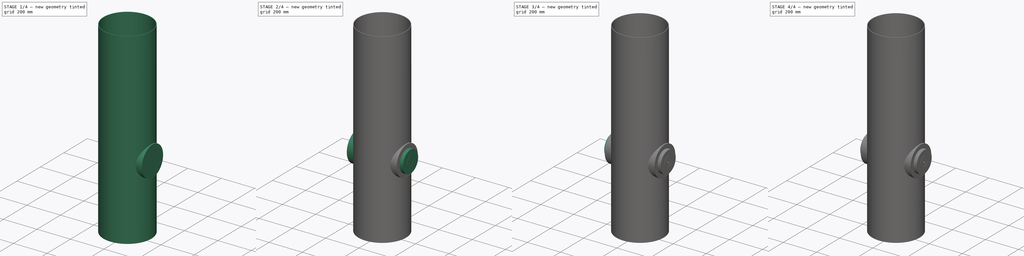
[diagram: build sequence overview — one tinted view per stage of 4, left to right]
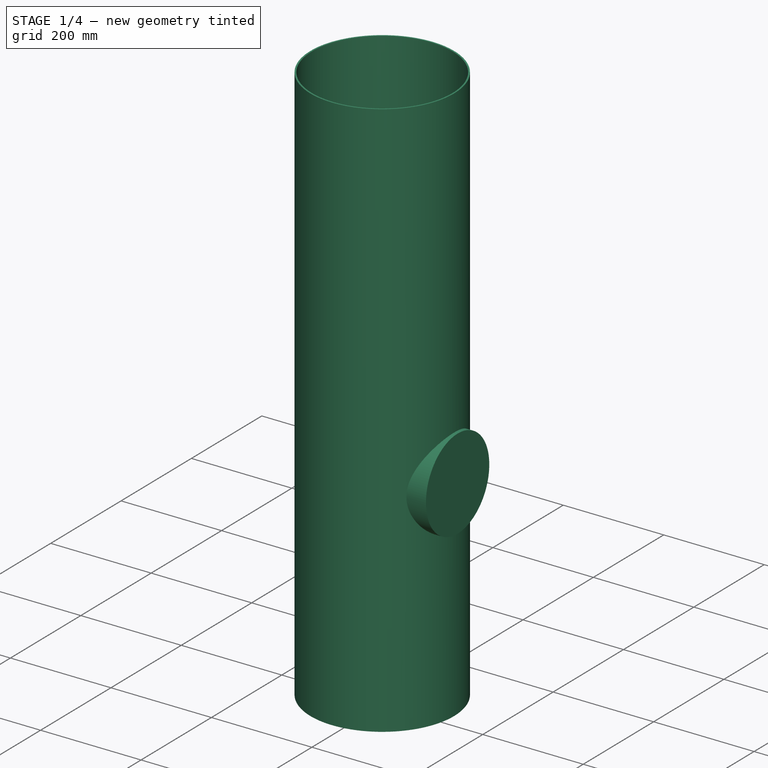
[diagram: stage 1 of 4 — iso view after this stage's code; geometry added in this stage tinted green]
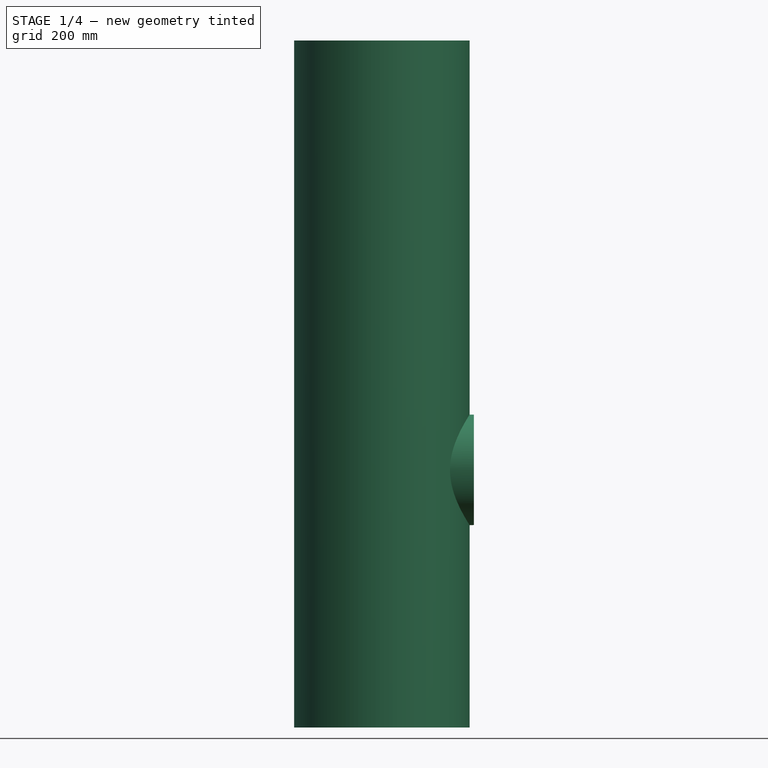
[diagram: stage 1 of 4 — front view after this stage's code; geometry added in this stage tinted green]
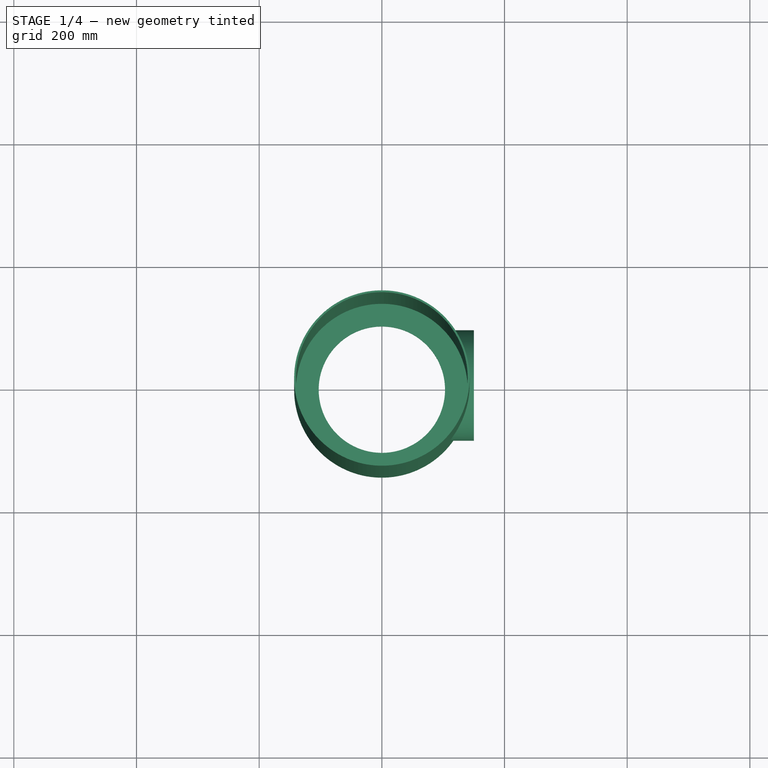
[diagram: stage 1 of 4 — top view after this stage's code; geometry added in this stage tinted green]
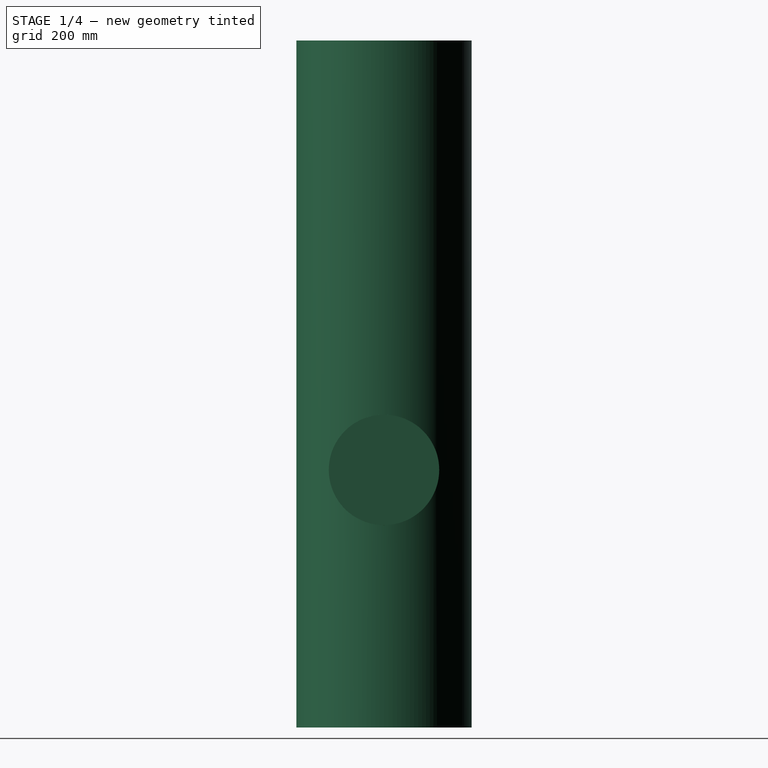
[diagram: stage 1 of 4 — right view after this stage's code; geometry added in this stage tinted green]
FCSTD DOCUMENT  (FreeCAD 0.19R21911 +2545 (Git))
Label: tubus
License: All rights reserved
LicenseURL: http://en.wikipedia.org/wiki/All_rights_reserved
objects: Sketcher::SketchObject×12, PartDesign::Pad×8, PartDesign::Pocket×4, PartDesign::Plane×3, PartDesign::Body×1
note: 52 computed .brp shape members not serialized (recipe doc carries the construction recipe); baked Part::Feature solids carry a one-line shape summary decoded from their .brp

FEATURE [Sketcher::SketchObject] Sketch
  MapMode = 5
  Support = -> [XY_Plane]
  sketch-geometry (2):
    g0: Circle CenterX=0 CenterY=0 CenterZ=0 NormalX=0 NormalY=0 NormalZ=1 AngleXU=0 Radius=140
    g1: Circle CenterX=0 CenterY=0 CenterZ=0 NormalX=0 NormalY=0 NormalZ=1 AngleXU=0 Radius=143
  constraints (4):
    c: Coincident(g0,g-1)
    c: Coincident(g1,g0)
    c: Radius(g1) = 143
    c: Radius(g0) = 140
FEATURE [PartDesign::Pad] Pad
  AllowMultiFace = false
  ClaimChildren = false
  Length = 1120
  Length2 = 100
  Profile = -> Sketch
  Suppress = false
  Type = 0
FEATURE [PartDesign::Plane] DatumPlane
  AttachmentOffset = pos=(0,0,-20) rot=(0,0,1;0rad)
  Length = 342
  MapMode = 5
  Placement = pos=(0,0,20) rot=(1,0,0;3.14159rad)
  ResizeMode = 0
  Support = -> [Pad]
  Width = 285.712
FEATURE [Sketcher::SketchObject] Sketch001
  ExternalGeometry = -> [Pad]
  MapMode = 5
  Placement = pos=(0,0,20) rot=(1,0,0;3.14159rad)
  Support = -> [DatumPlane]
  sketch-geometry (2):
    g0: Circle CenterX=0 CenterY=0 CenterZ=0 NormalX=0 NormalY=0 NormalZ=1 AngleXU=0 Radius=140
    g1: Circle CenterX=0 CenterY=0 CenterZ=0 NormalX=0 NormalY=0 NormalZ=1 AngleXU=0 Radius=103
  constraints (4):
    c: Coincident(g0,g-1)
    c: Coincident(g1,g0)
    c: Equal(g-3,g0)
    c: Radius(g1) = 103
FEATURE [PartDesign::Pad] Pad001
  AllowMultiFace = false
  BaseFeature = -> Pad
  ClaimChildren = false
  Length = 10
  Length2 = 100
  Profile = -> Sketch001
  Reversed = true
  Suppress = false
  Type = 0
FEATURE [PartDesign::Plane] DatumPlane001
  AttachmentOffset = pos=(0,0,150) rot=(0,0,1;0rad)
  Length = 285.712
  MapMode = 5
  Placement = pos=(150,-1.69365e-11,1.69365e-11) rot=(0.57735,0.57735,0.57735;2.0944rad)
  ResizeMode = 0
  Support = -> [YZ_Plane]
  Width = 1120
FEATURE [Sketcher::SketchObject] Sketch002
  MapMode = 5
  Placement = pos=(150,-1.69365e-11,1.69365e-11) rot=(0.57735,0.57735,0.57735;2.0944rad)
  Support = -> [DatumPlane001]
  sketch-geometry (1):
    g0: Circle CenterX=0 CenterY=420 CenterZ=0 NormalX=0 NormalY=0 NormalZ=1 AngleXU=0 Radius=90
  constraints (3):
    c: PointOnObject(g0,g-2)
    c: DistanceY(g0) = 420
    c: Radius(g0) = 90
FEATURE [PartDesign::Pad] Pad002
  AllowMultiFace = false
  BaseFeature = -> Pad001
  ClaimChildren = false
  Length = 23
  Length2 = 100
  Profile = -> Sketch002
  Suppress = false
  Type = 3
  UpToFace = -> Pad001 [Face1]
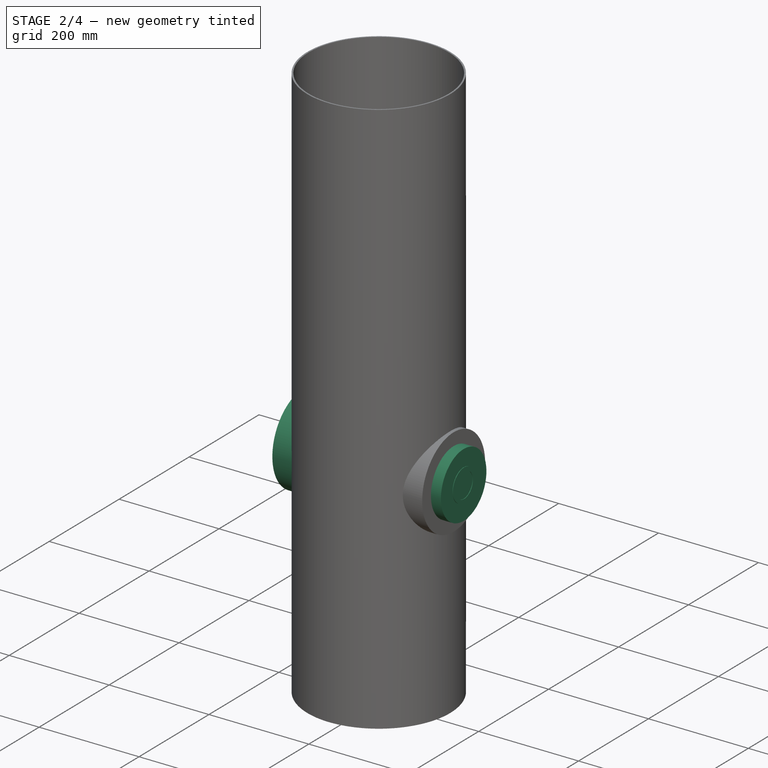
[diagram: stage 2 of 4 — iso view after this stage's code; geometry added in this stage tinted green]
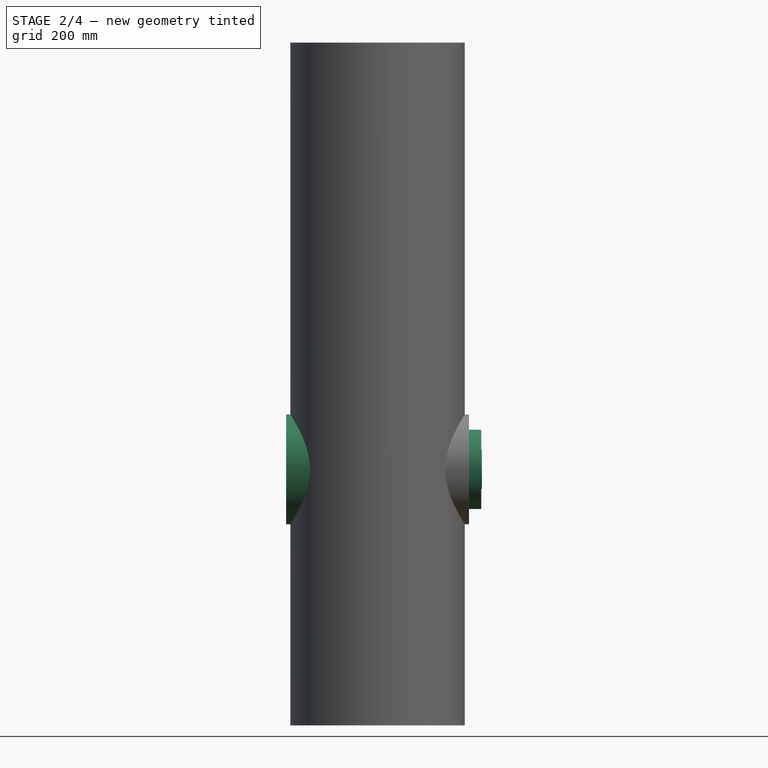
[diagram: stage 2 of 4 — front view after this stage's code; geometry added in this stage tinted green]
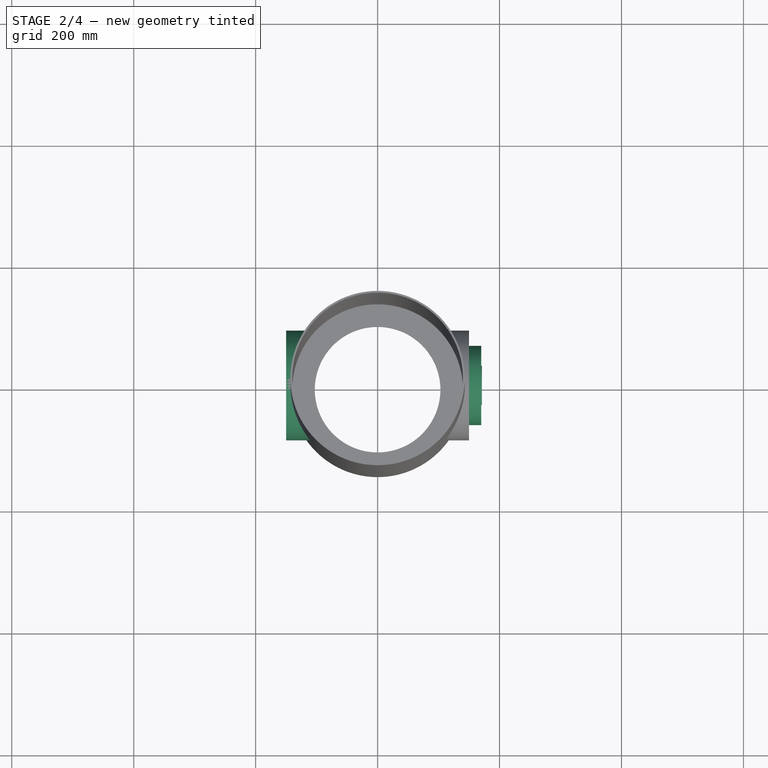
[diagram: stage 2 of 4 — top view after this stage's code; geometry added in this stage tinted green]
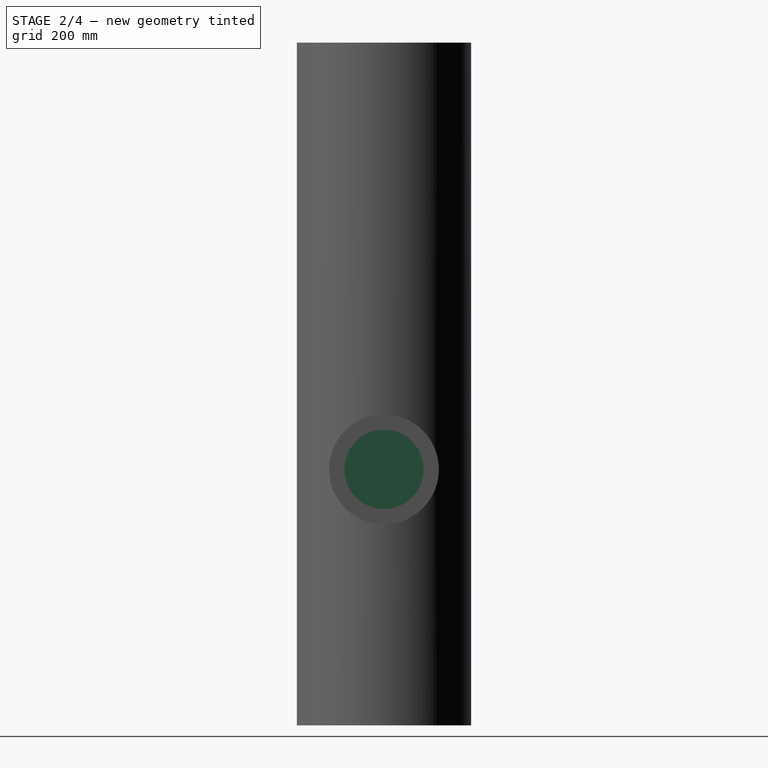
[diagram: stage 2 of 4 — right view after this stage's code; geometry added in this stage tinted green]
FEATURE [Sketcher::SketchObject] Sketch003
  ExternalGeometry = -> [Pad002]
  MapMode = 5
  Placement = pos=(150,-1.68795e-11,1.6929e-11) rot=(0.57735,0.57735,0.57735;2.0944rad)
  Support = -> [Pad002]
  sketch-geometry (1):
    g0: Circle CenterX=0 CenterY=420 CenterZ=0 NormalX=0 NormalY=0 NormalZ=1 AngleXU=0 Radius=65
  constraints (2):
    c: Coincident(g0,g-3)
    c: Radius(g0) = 65
FEATURE [PartDesign::Pad] Pad003
  AllowMultiFace = false
  BaseFeature = -> Pad002
  ClaimChildren = false
  Length = 20
  Length2 = 100
  Profile = -> Sketch003
  Suppress = false
  Type = 0
FEATURE [Sketcher::SketchObject] Sketch004
  ExternalGeometry = -> [Pad003]
  MapMode = 5
  Placement = pos=(170,-1.91284e-11,1.91403e-11) rot=(0.57735,0.57735,0.57735;2.0944rad)
  Support = -> [Pad003]
  sketch-geometry (2):
    g0: Circle CenterX=0 CenterY=420 CenterZ=0 NormalX=0 NormalY=0 NormalZ=1 AngleXU=0 Radius=32
    g1: Circle CenterX=0 CenterY=420 CenterZ=0 NormalX=0 NormalY=0 NormalZ=1 AngleXU=0 Radius=25
  constraints (4):
    c: Coincident(g0,g-3)
    c: Radius(g0) = 32
    c: Coincident(g1,g0)
    c: Radius(g1) = 25
FEATURE [PartDesign::Pad] Pad004
  AllowMultiFace = false
  BaseFeature = -> Pad003
  ClaimChildren = false
  Length = 1
  Length2 = 100
  Profile = -> Sketch004
  Suppress = false
  Type = 0
FEATURE [PartDesign::Plane] DatumPlane002
  AttachmentOffset = pos=(0,0,-150) rot=(0,0,1;0rad)
  Length = 285.712
  MapMode = 5
  Placement = pos=(-150,1.69365e-11,-1.69365e-11) rot=(0.57735,0.57735,0.57735;2.0944rad)
  ResizeMode = 0
  Support = -> [YZ_Plane]
  Width = 1120
FEATURE [Sketcher::SketchObject] Sketch005
  ExternalGeometry = -> [Pad004]
  MapMode = 5
  Placement = pos=(-150,1.69365e-11,-1.69365e-11) rot=(0.57735,0.57735,0.57735;2.0944rad)
  Support = -> [DatumPlane002]
  sketch-geometry (1):
    g0: Circle CenterX=0 CenterY=420 CenterZ=0 NormalX=0 NormalY=0 NormalZ=1 AngleXU=0 Radius=90
  constraints (2):
    c: Coincident(g0,g-3)
    c: Equal(g0,g-3)
FEATURE [PartDesign::Pad] Pad005
  AllowMultiFace = false
  BaseFeature = -> Pad004
  ClaimChildren = false
  Length = 10
  Length2 = 100
  Profile = -> Sketch005
  Suppress = false
  Type = 3
  UpToFace = -> Pad004 [Face1]
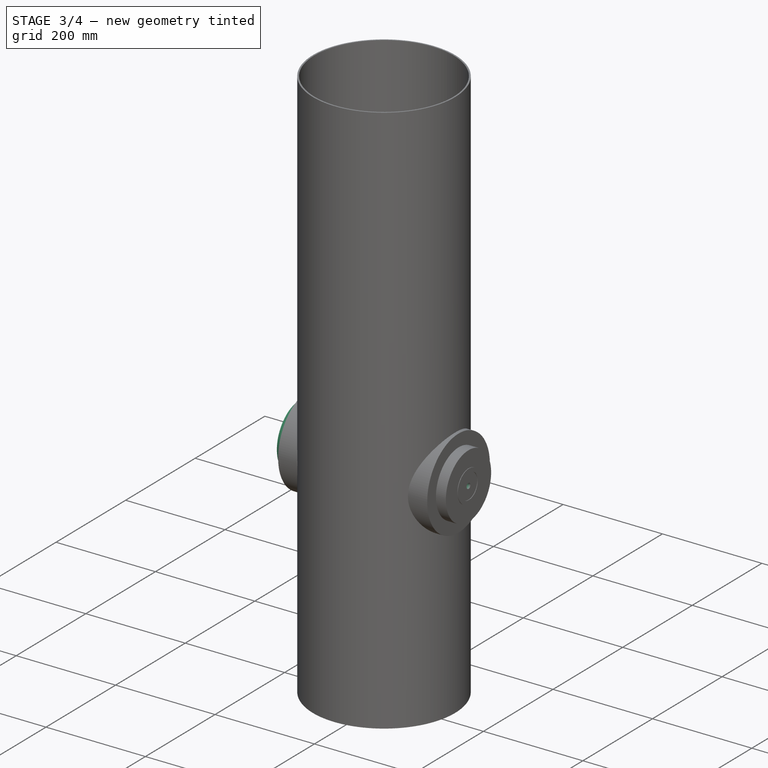
[diagram: stage 3 of 4 — iso view after this stage's code; geometry added in this stage tinted green]
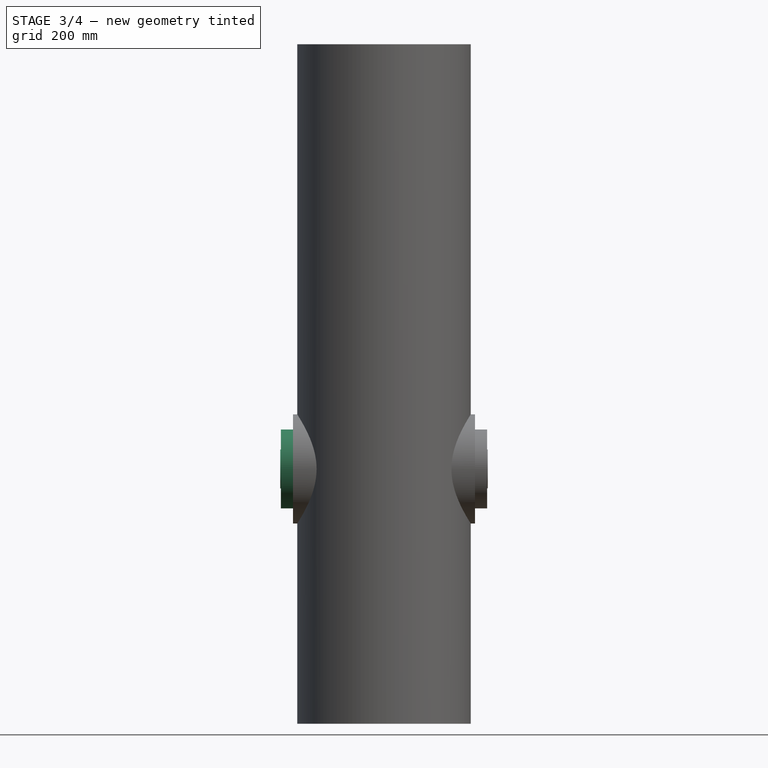
[diagram: stage 3 of 4 — front view after this stage's code; geometry added in this stage tinted green]
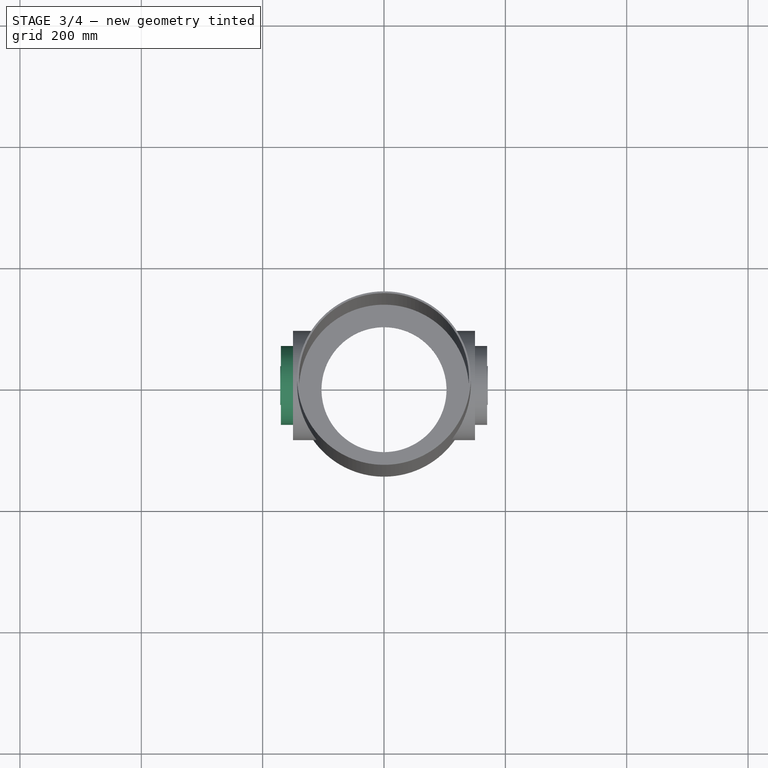
[diagram: stage 3 of 4 — top view after this stage's code; geometry added in this stage tinted green]
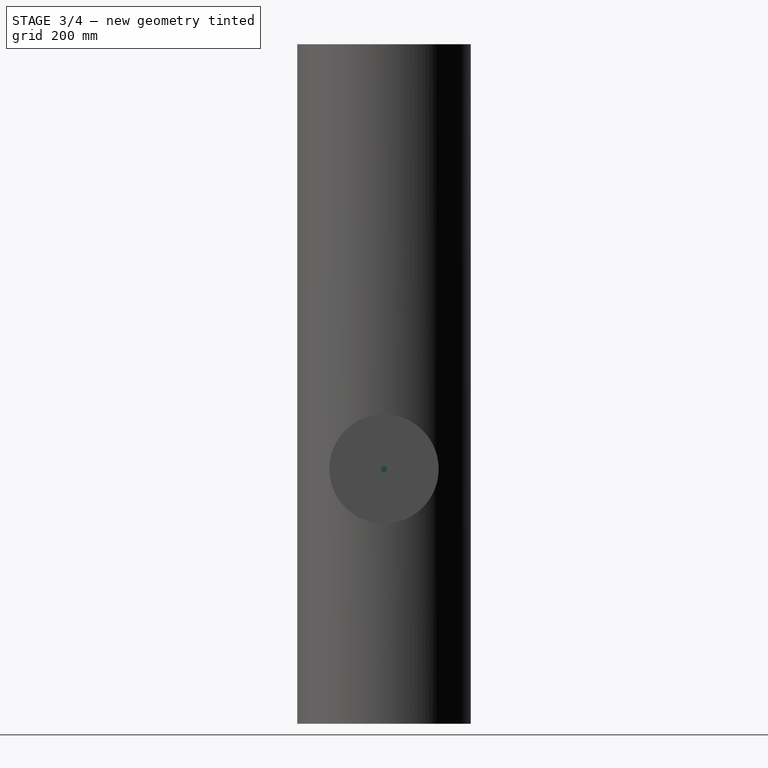
[diagram: stage 3 of 4 — right view after this stage's code; geometry added in this stage tinted green]
FEATURE [Sketcher::SketchObject] Sketch006
  ExternalGeometry = -> [Pad005]
  MapMode = 5
  Placement = pos=(-150,1.68795e-11,-1.6929e-11) rot=(-0.57735,0.57735,0.57735;4.18879rad)
  Support = -> [Pad005]
  sketch-geometry (1):
    g0: Circle CenterX=0 CenterY=420 CenterZ=0 NormalX=0 NormalY=0 NormalZ=1 AngleXU=0 Radius=65
  constraints (2):
    c: Coincident(g0,g-3)
    c: Equal(g-4,g0)
FEATURE [PartDesign::Pad] Pad006
  AllowMultiFace = false
  BaseFeature = -> Pad005
  ClaimChildren = false
  Length = 20
  Length2 = 100
  Profile = -> Sketch006
  Suppress = false
  Type = 0
FEATURE [Sketcher::SketchObject] Sketch007
  ExternalGeometry = -> [Pad006]
  MapMode = 5
  Placement = pos=(-170,1.91539e-11,-1.91845e-11) rot=(-0.57735,0.57735,0.57735;4.18879rad)
  Support = -> [Pad006]
  sketch-geometry (2):
    g0: Circle CenterX=0 CenterY=420 CenterZ=0 NormalX=0 NormalY=0 NormalZ=1 AngleXU=0 Radius=25
    g1: Circle CenterX=0 CenterY=420 CenterZ=0 NormalX=0 NormalY=0 NormalZ=1 AngleXU=0 Radius=32
  constraints (4):
    c: Coincident(g0,g-4)
    c: Coincident(g1,g0)
    c: Equal(g1,g-3)
    c: Equal(g0,g-4)
FEATURE [PartDesign::Pad] Pad007
  AllowMultiFace = false
  BaseFeature = -> Pad006
  ClaimChildren = false
  Length = 1
  Length2 = 100
  Profile = -> Sketch007
  Suppress = false
  Type = 0
FEATURE [Sketcher::SketchObject] Sketch008
  ExternalGeometry = -> [Pad007]
  MapMode = 5
  Placement = pos=(170,-1.91284e-11,1.91403e-11) rot=(0.57735,0.57735,0.57735;2.0944rad)
  Support = -> [Pad007]
  sketch-geometry (1):
    g0: Circle CenterX=0 CenterY=420 CenterZ=0 NormalX=0 NormalY=0 NormalZ=1 AngleXU=0 Radius=5.25
  constraints (2):
    c: Coincident(g0,g-3)
    c: Radius(g0) = 5.25
FEATURE [PartDesign::Pocket] Pocket
  AllowMultiFace = false
  BaseFeature = -> Pad007
  ClaimChildren = false
  Length = 7
  Length2 = 100
  Profile = -> Sketch008
  Suppress = false
  Type = 0
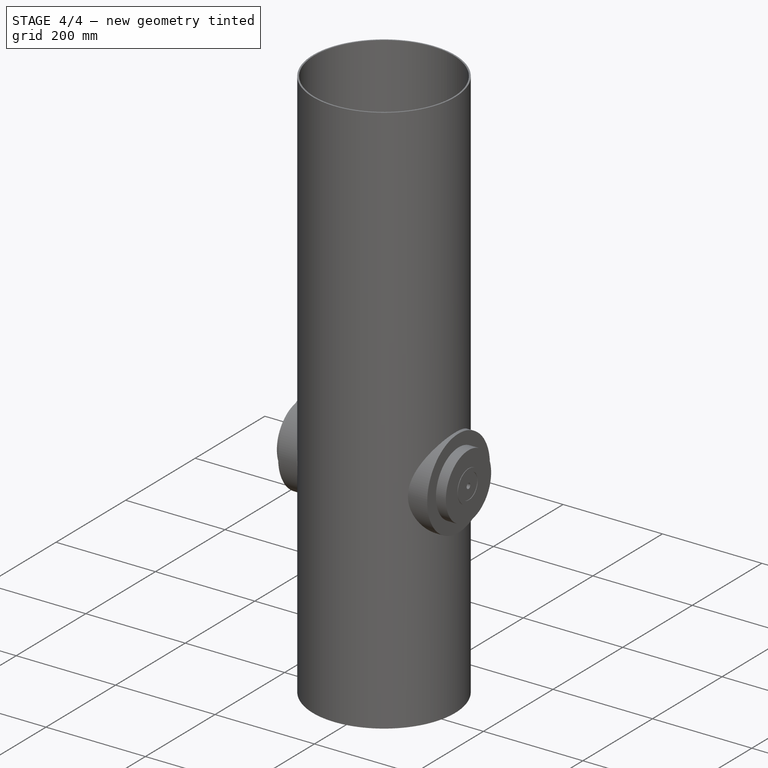
[diagram: stage 4 of 4 — iso view after this stage's code; geometry added in this stage tinted green]
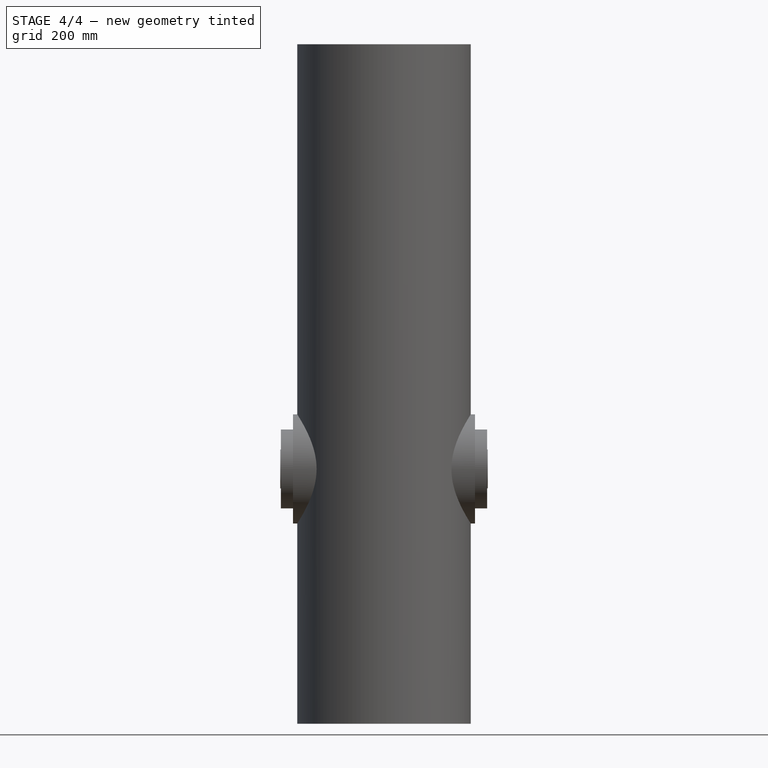
[diagram: stage 4 of 4 — front view after this stage's code; geometry added in this stage tinted green]
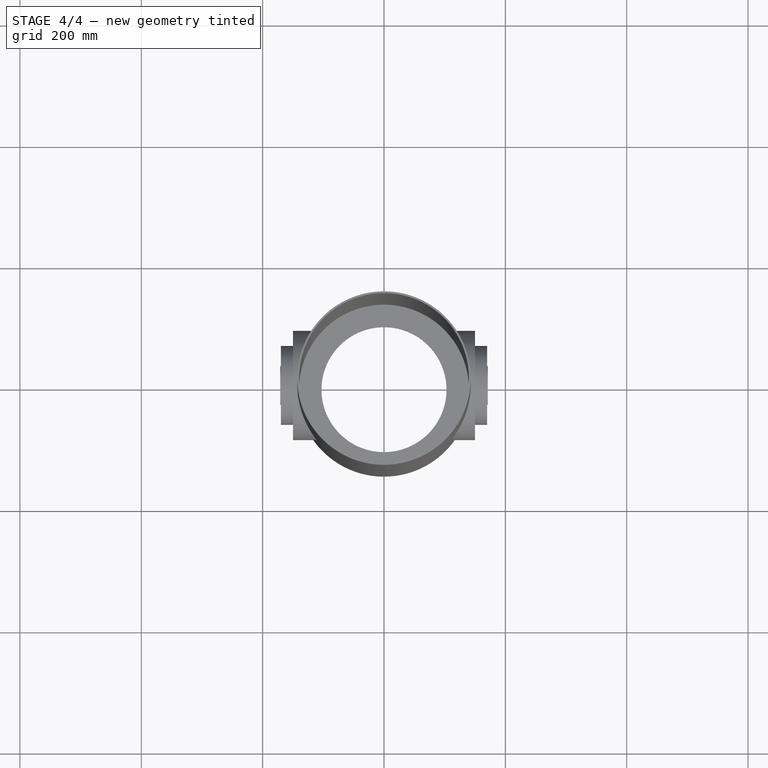
[diagram: stage 4 of 4 — top view after this stage's code; geometry added in this stage tinted green]
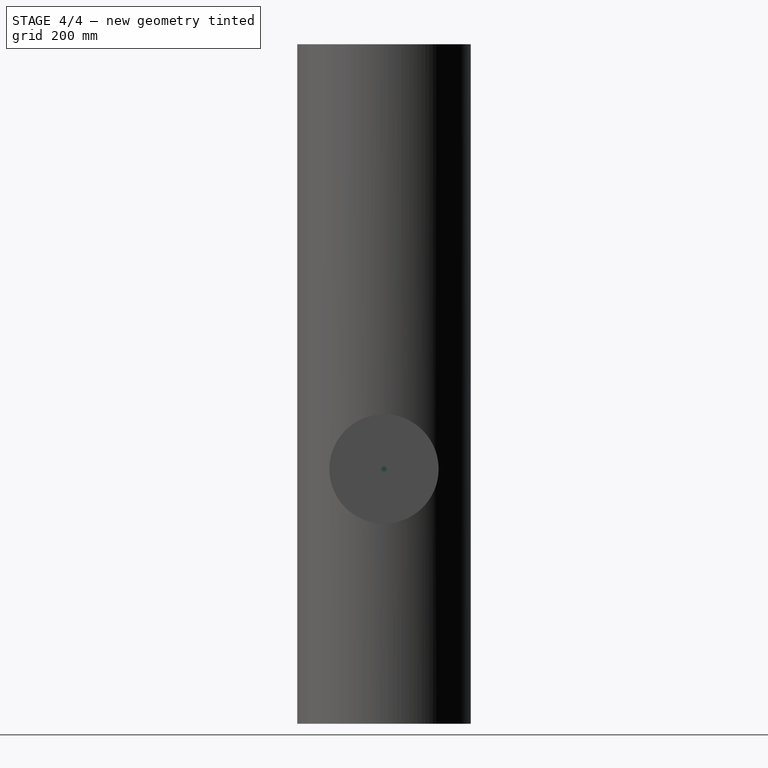
[diagram: stage 4 of 4 — right view after this stage's code; geometry added in this stage tinted green]
FEATURE [Sketcher::SketchObject] Sketch009
  ExternalGeometry = -> [Pocket]
  MapMode = 5
  Placement = pos=(163,-1.82364e-11,1.83408e-11) rot=(0.57735,0.57735,0.57735;2.0944rad)
  Support = -> [Pocket]
  sketch-geometry (1):
    g0: Circle CenterX=0 CenterY=420 CenterZ=0 NormalX=0 NormalY=0 NormalZ=1 AngleXU=0 Radius=4.25
  constraints (2):
    c: Coincident(g0,g-3)
    c: Radius(g0) = 4.25
FEATURE [PartDesign::Pocket] Pocket001
  AllowMultiFace = false
  BaseFeature = -> Pocket
  ClaimChildren = false
  Length = 15
  Length2 = 100
  Profile = -> Sketch009
  Suppress = false
  Type = 0
FEATURE [Sketcher::SketchObject] Sketch010
  ExternalGeometry = -> [Pocket001]
  MapMode = 5
  Placement = pos=(-170,1.91539e-11,-1.91845e-11) rot=(-0.57735,0.57735,0.57735;4.18879rad)
  Support = -> [Pocket001]
  sketch-geometry (1):
    g0: Circle CenterX=0 CenterY=420 CenterZ=0 NormalX=0 NormalY=0 NormalZ=1 AngleXU=0 Radius=5.25
  constraints (2):
    c: Coincident(g0,g-3)
    c: Radius(g0) = 5.25
FEATURE [PartDesign::Pocket] Pocket002
  AllowMultiFace = false
  BaseFeature = -> Pocket001
  ClaimChildren = false
  Length = 7
  Length2 = 100
  Profile = -> Sketch010
  Suppress = false
  Type = 0
FEATURE [Sketcher::SketchObject] Sketch011
  ExternalGeometry = -> [Pocket002]
  MapMode = 5
  Placement = pos=(-163,1.82364e-11,-1.83408e-11) rot=(-0.57735,0.57735,0.57735;4.18879rad)
  Support = -> [Pocket002]
  sketch-geometry (1):
    g0: Circle CenterX=0 CenterY=420 CenterZ=0 NormalX=0 NormalY=0 NormalZ=1 AngleXU=0 Radius=4.25
  constraints (2):
    c: Coincident(g0,g-3)
    c: Radius(g0) = 4.25
FEATURE [PartDesign::Pocket] Pocket003
  AllowMultiFace = false
  BaseFeature = -> Pocket002
  ClaimChildren = false
  Length = 15
  Length2 = 100
  Profile = -> Sketch011
  Suppress = false
  Type = 0
FEATURE [PartDesign::Body] Body  label="tubus"
  ExportMode = 0
  Group = -> [Sketch,Pad,DatumPlane,Sketch001,Pad001,DatumPlane001,Sketch002,Pad002,Sketch003,Pad003,Sketch004,Pad004,DatumPlane002,Sketch005,Pad005,Sketch006,Pad006,Sketch007,Pad007,Sketch008,Pocket,Sketch009,Pocket001,Sketch010,Pocket002,Sketch011,Pocket003]
  Origin = -> Origin
  SingleSolid = true
  Tip = -> Pocket003
  _ExportChildren = -> [Pad,DatumPlane,Pad001,DatumPlane001,Pad002,Pad003,Pad004,DatumPlane002,Pad005,Pad006,Pad007,Pocket,Pocket001,Pocket002,Pocket003]
  _GroupVersion = 1
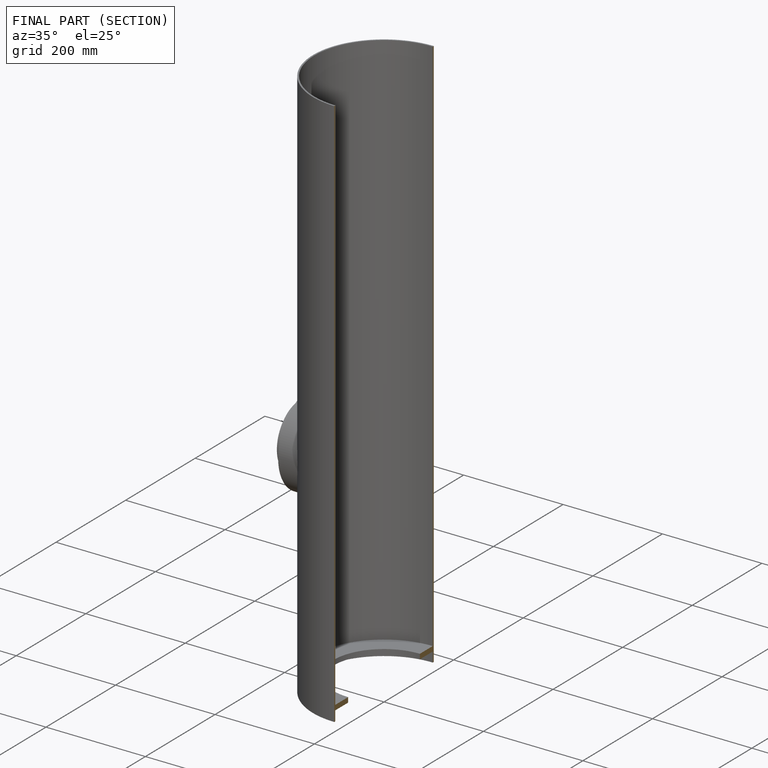
[diagram: finished part — half-section view (interior)]
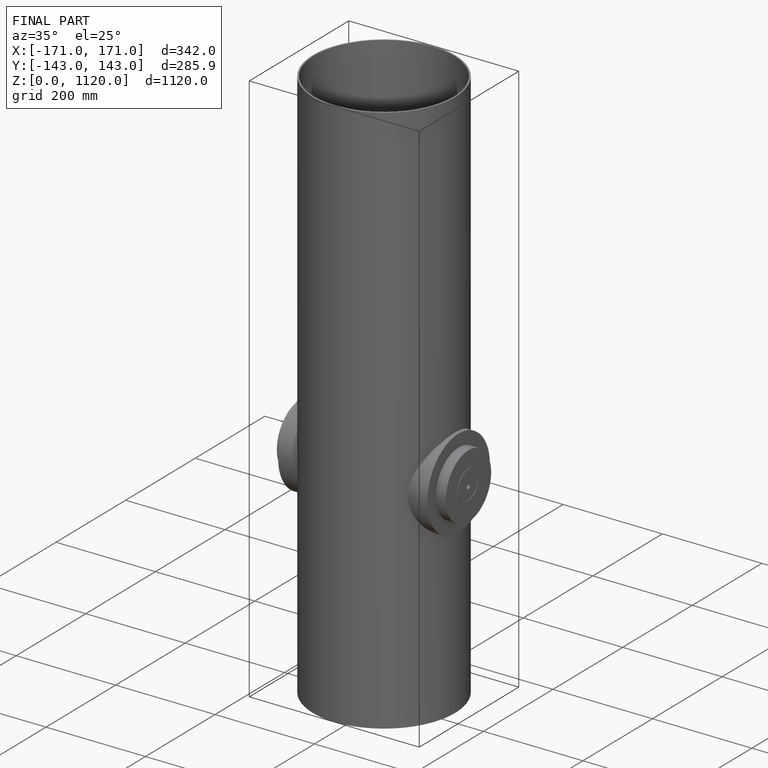
[diagram: finished part — iso view with bounding-box wireframe]
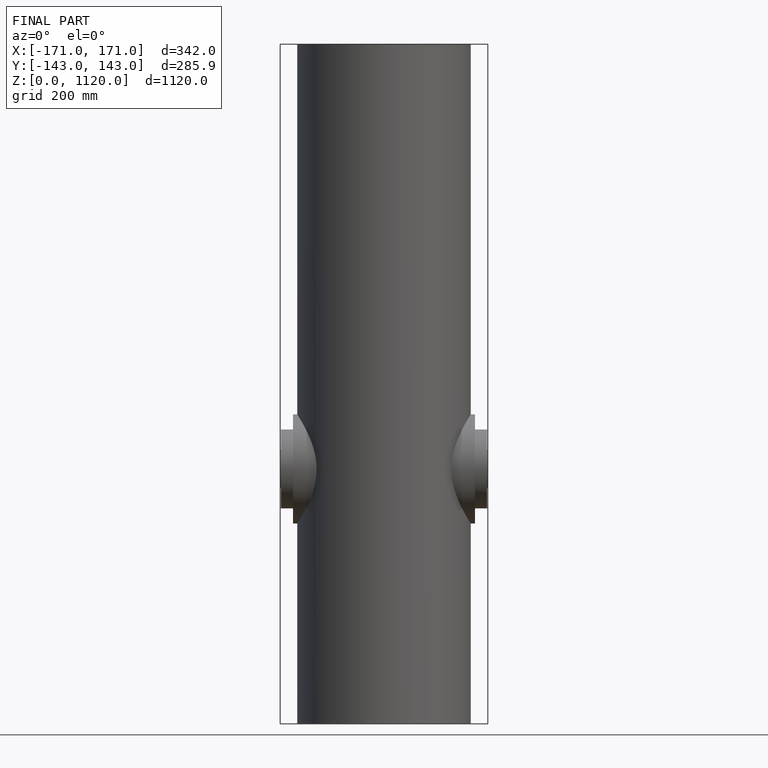
[diagram: finished part — front view with bounding-box wireframe]
